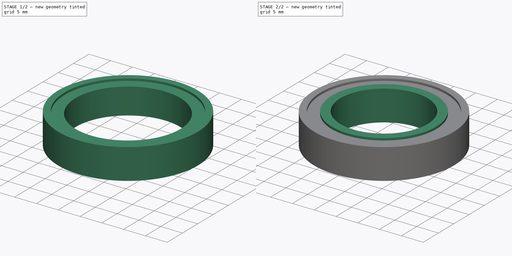
[diagram: build sequence overview — one tinted view per stage of 2, left to right]
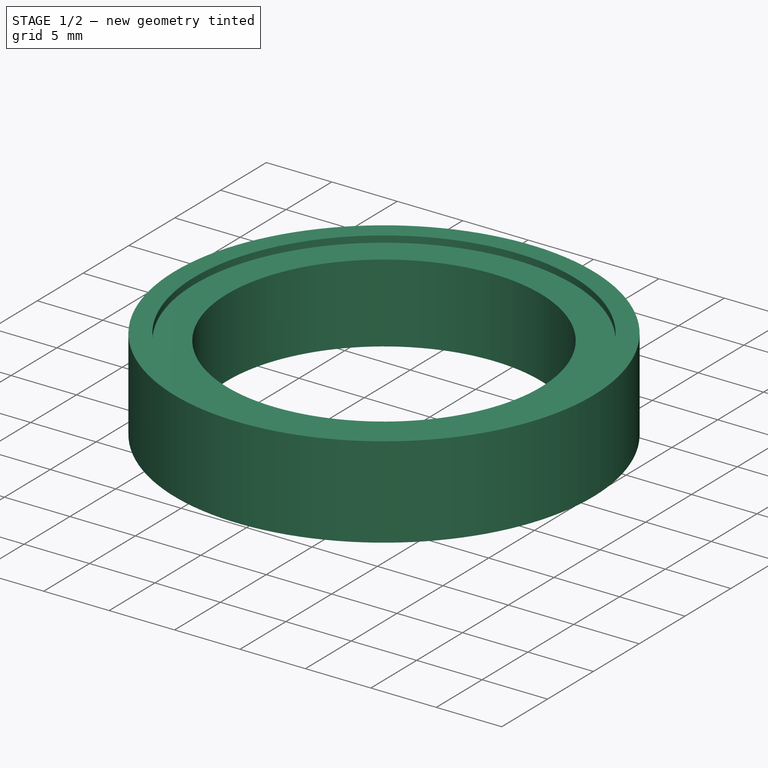
[diagram: stage 1 of 2 — iso view after this stage's code; geometry added in this stage tinted green]
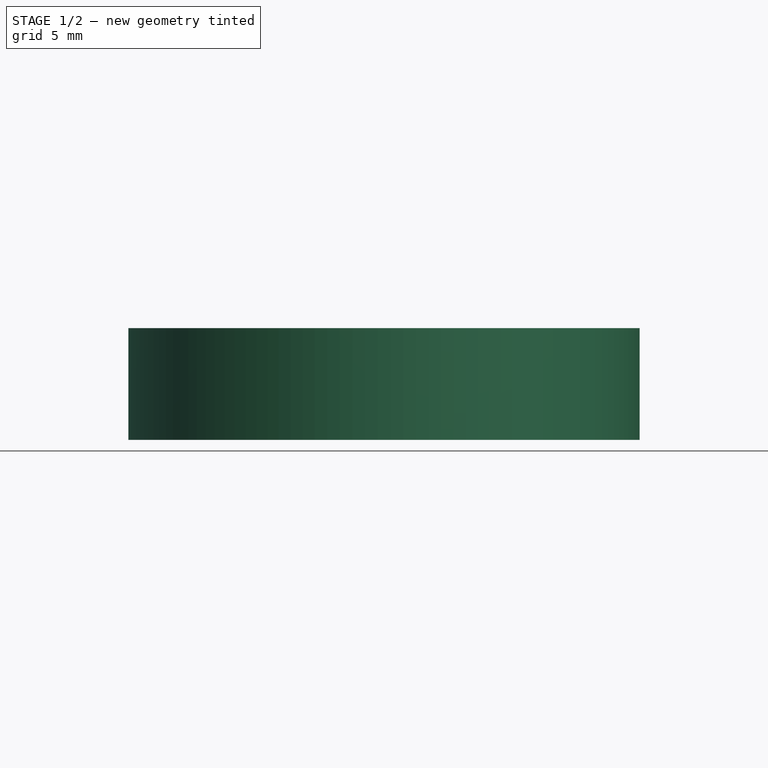
[diagram: stage 1 of 2 — front view after this stage's code; geometry added in this stage tinted green]
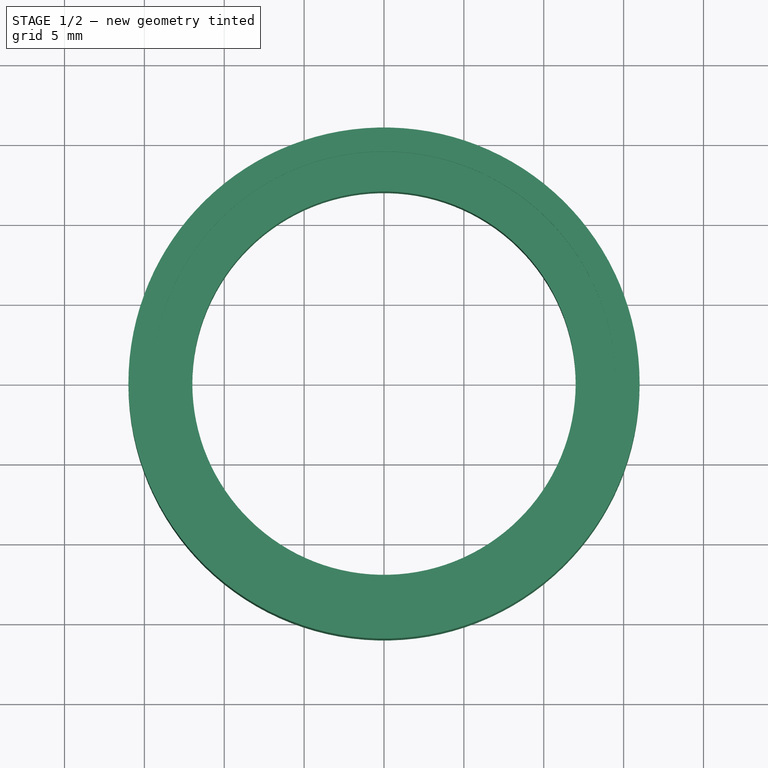
[diagram: stage 1 of 2 — top view after this stage's code; geometry added in this stage tinted green]
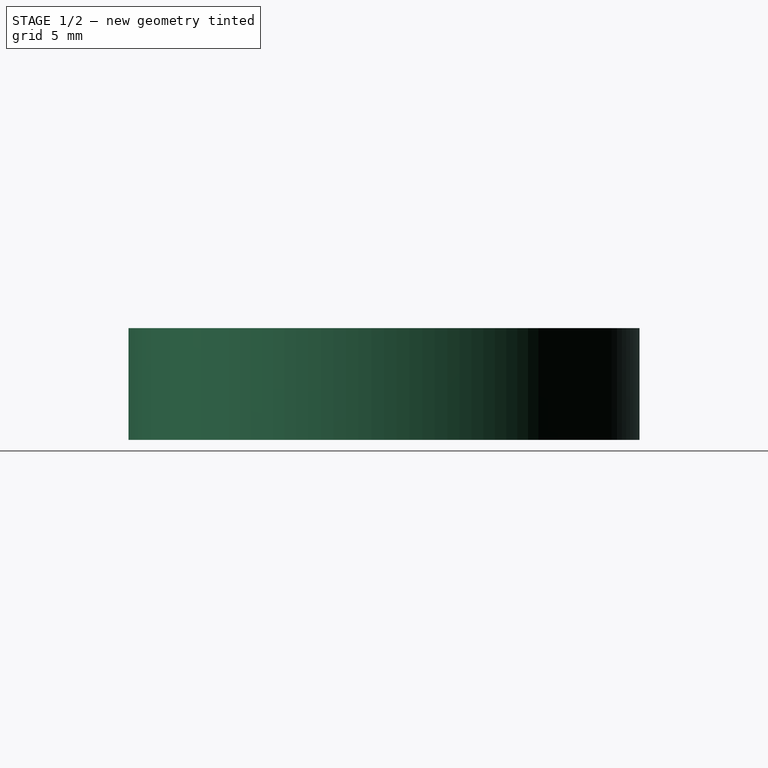
[diagram: stage 1 of 2 — right view after this stage's code; geometry added in this stage tinted green]
FCSTD DOCUMENT  (FreeCAD 2023.1102R14555 (Git shallow))
Label: Ball_Bearing
License: All rights reserved
LicenseURL: http://en.wikipedia.org/wiki/All_rights_reserved
objects: Sketcher::SketchObject×3, PartDesign::Pad×3, PartDesign::Body×1, App::Part×1
note: 16 computed .brp shape members not serialized (recipe doc carries the construction recipe); baked Part::Feature solids carry a one-line shape summary decoded from their .brp

FEATURE [Sketcher::SketchObject] Sketch
  ArcFitTolerance = 0
  AttachmentSupport = -> [XY_Plane]
  ExternalBSplineMaxDegree = 0
  ExternalBSplineTolerance = 0
  FullyConstrained = true
  InternalTolerance = 1e-06
  InvalidShape = false
  MakeInternals = false
  MapMode = 5
  Support = -> [XY_Plane]
  TreeRank = 0
  ValidateShape = false
  sketch-geometry (2):
    g0: Circle CenterX=0 CenterY=0 CenterZ=0 NormalX=0 NormalY=0 NormalZ=1 AngleXU=0 Radius=16
    g1: Circle CenterX=0 CenterY=0 CenterZ=0 NormalX=0 NormalY=0 NormalZ=1 AngleXU=0 Radius=14.5
  constraints (4):
    c: Coincident(g0,g-1)
    c: Diameter(g0) = 32
    c: Coincident(g1,g0)
    c: Diameter(g1) = 29
FEATURE [PartDesign::Pad] Pad
  AddSubType = 0
  AutoTaperInnerAngle = true
  CheckUpToFaceLimits = true
  ClaimChildren = false
  Direction = (0,0,1)
  Fit = 0
  FitJoin = 0
  InnerFit = 0
  InnerFitJoin = 0
  InvalidShape = false
  Length = 7
  Length2 = 10
  Midplane = true
  NewSolid = false
  Profile = -> Sketch
  ReferenceAxis = -> Sketch [N_Axis]
  Suppress = false
  TaperInnerAngle = 0
  TaperInnerAngleRev = 0
  TreeRank = 0
  Type = 0
  ValidateShape = true
  _ProfileBasedVersion = 0
FEATURE [Sketcher::SketchObject] Sketch001
  ArcFitTolerance = 0
  AttachmentSupport = -> [XY_Plane]
  ExternalBSplineMaxDegree = 0
  ExternalBSplineTolerance = 0
  ExternalGeometry = -> [Pad]
  FullyConstrained = true
  InternalTolerance = 1e-06
  InvalidShape = false
  MakeInternals = false
  MapMode = 5
  Support = -> [XY_Plane]
  TreeRank = 0
  ValidateShape = false
  sketch-geometry (2):
    g0: Circle CenterX=0 CenterY=0 CenterZ=0 NormalX=0 NormalY=0 NormalZ=1 AngleXU=0 Radius=14.5
    g1: Circle CenterX=0 CenterY=0 CenterZ=0 NormalX=0 NormalY=0 NormalZ=1 AngleXU=0 Radius=12
  constraints (4):
    c: Equal(g0,g-3)
    c: Coincident(g0,g-3)
    c: Coincident(g1,g0)
    c: Diameter(g1) = 24
FEATURE [PartDesign::Pad] Pad001
  AddSubType = 0
  AutoTaperInnerAngle = true
  BaseFeature = -> Pad
  CheckUpToFaceLimits = true
  ClaimChildren = false
  Direction = (0,0,1)
  Fit = 0
  FitJoin = 0
  InnerFit = 0
  InnerFitJoin = 0
  InvalidShape = false
  Length = 6
  Length2 = 10
  Midplane = true
  NewSolid = false
  Profile = -> Sketch001
  ReferenceAxis = -> Sketch001 [N_Axis]
  Suppress = false
  TaperInnerAngle = 0
  TaperInnerAngleRev = 0
  TreeRank = 0
  Type = 0
  ValidateShape = true
  _ProfileBasedVersion = 0
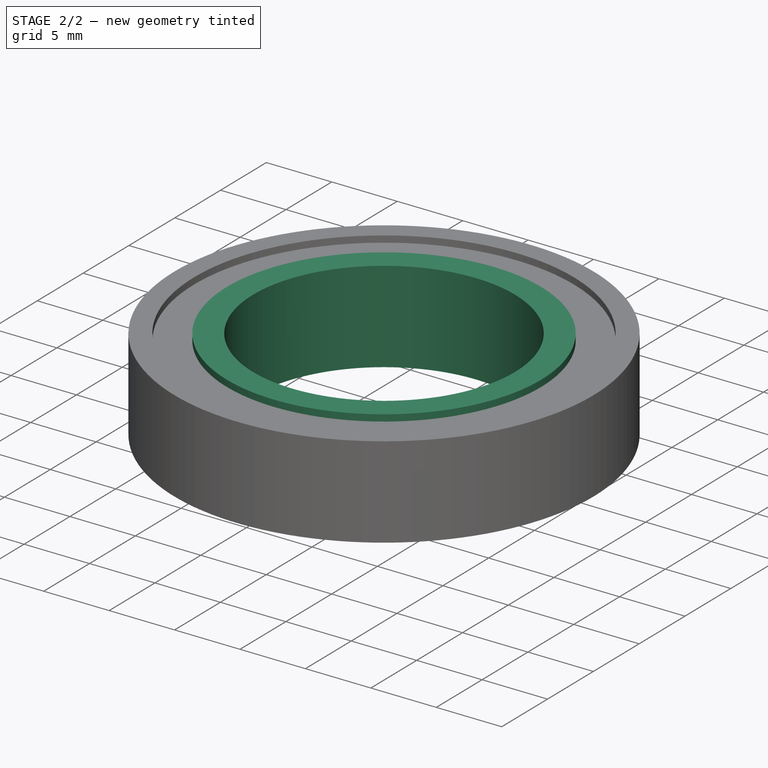
[diagram: stage 2 of 2 — iso view after this stage's code; geometry added in this stage tinted green]
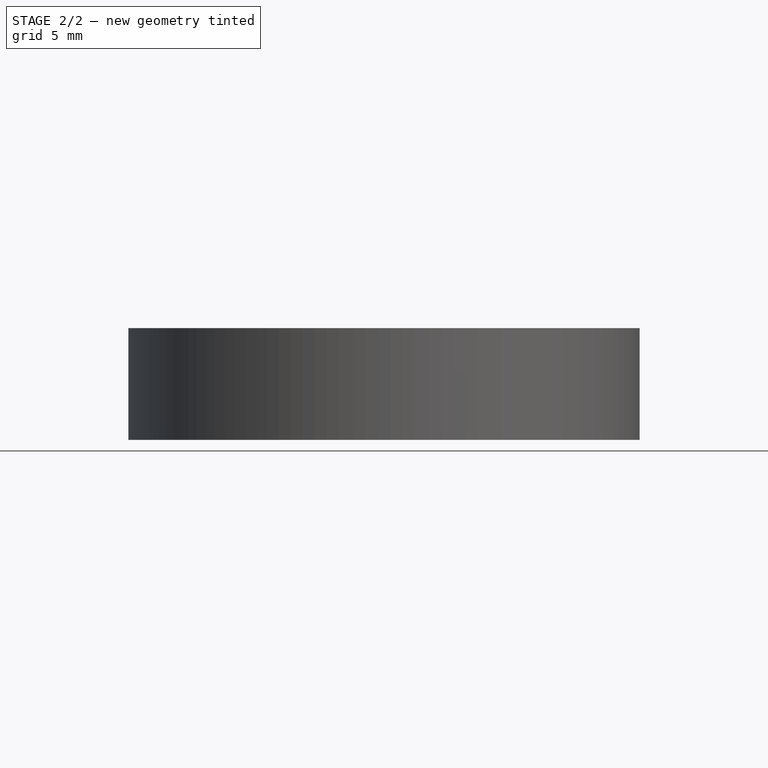
[diagram: stage 2 of 2 — front view after this stage's code; geometry added in this stage tinted green]
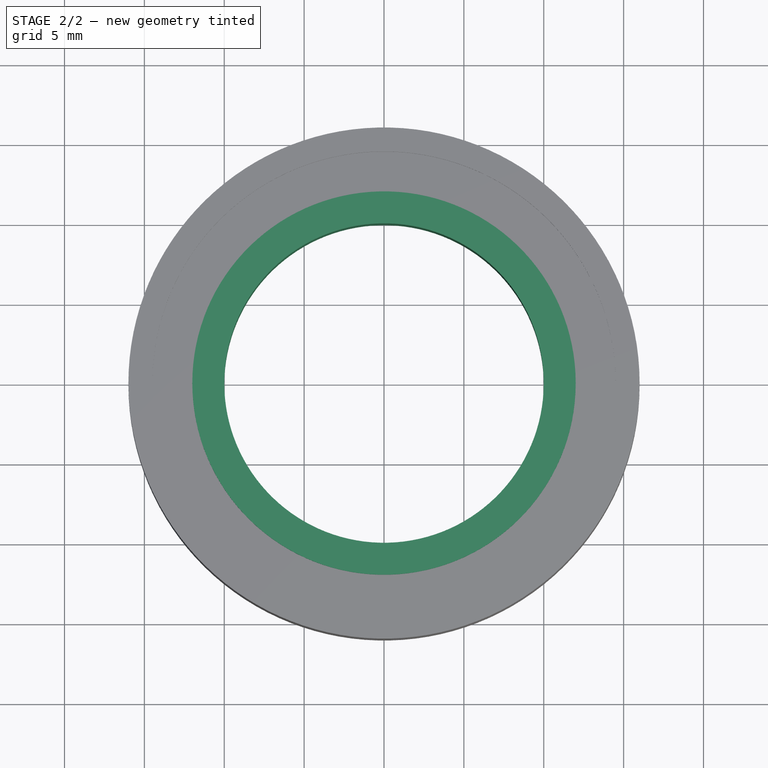
[diagram: stage 2 of 2 — top view after this stage's code; geometry added in this stage tinted green]
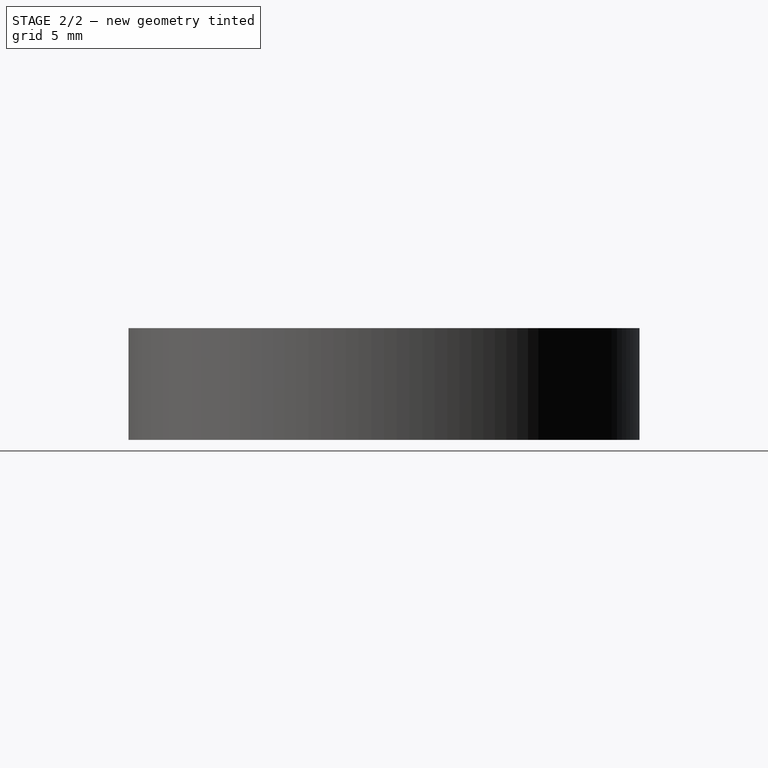
[diagram: stage 2 of 2 — right view after this stage's code; geometry added in this stage tinted green]
FEATURE [Sketcher::SketchObject] Sketch002
  ArcFitTolerance = 0
  AttachmentSupport = -> [XY_Plane]
  ExternalBSplineMaxDegree = 0
  ExternalBSplineTolerance = 0
  ExternalGeometry = -> [Pad001]
  FullyConstrained = true
  InternalTolerance = 1e-06
  InvalidShape = false
  MakeInternals = false
  MapMode = 5
  Support = -> [XY_Plane]
  TreeRank = 0
  ValidateShape = false
  sketch-geometry (2):
    g0: Circle CenterX=0 CenterY=0 CenterZ=0 NormalX=0 NormalY=0 NormalZ=1 AngleXU=0 Radius=12
    g1: Circle CenterX=0 CenterY=0 CenterZ=0 NormalX=0 NormalY=0 NormalZ=1 AngleXU=0 Radius=10
  constraints (4):
    c: Coincident(g0,g-1)
    c: Equal(g0,g-3)
    c: Diameter(g1) = 20
    c: Coincident(g1,g0)
FEATURE [PartDesign::Pad] Pad002
  AddSubType = 0
  AutoTaperInnerAngle = true
  BaseFeature = -> Pad001
  CheckUpToFaceLimits = true
  ClaimChildren = false
  Direction = (0,0,1)
  Fit = 0
  FitJoin = 0
  InnerFit = 0
  InnerFitJoin = 0
  InvalidShape = false
  Length = 7
  Length2 = 10
  Midplane = true
  NewSolid = false
  Profile = -> Sketch002
  ReferenceAxis = -> Sketch002 [N_Axis]
  Suppress = false
  TaperInnerAngle = 0
  TaperInnerAngleRev = 0
  TreeRank = 0
  Type = 0
  ValidateShape = true
  _ProfileBasedVersion = 0
FEATURE [PartDesign::Body] Body
  AutoGroupSolids = false
  ClaimAllChildren = false
  ExportMode = 0
  Group = -> [Sketch,Pad,Sketch001,Pad001,Sketch002,Pad002]
  InvalidShape = false
  Origin = -> Origin
  Tip = -> Pad002
  TreeRank = 0
  ValidateShape = false
  _ExportChildren = -> [Pad,Pad001,Pad002]
  _GroupVersion = 1
FEATURE [App::Part] Part  label="Ball_Bearing"
  ClaimAllChildren = false
  ColoredElements = -> Part [Body.Pad002.Face6,Body.Pad002.Face7]
  ExportMode = 1
  Group = -> [Body]
  Origin = -> Origin001
  TreeRank = 3
  _ExportChildren = -> [Body]
  _GroupVersion = 1
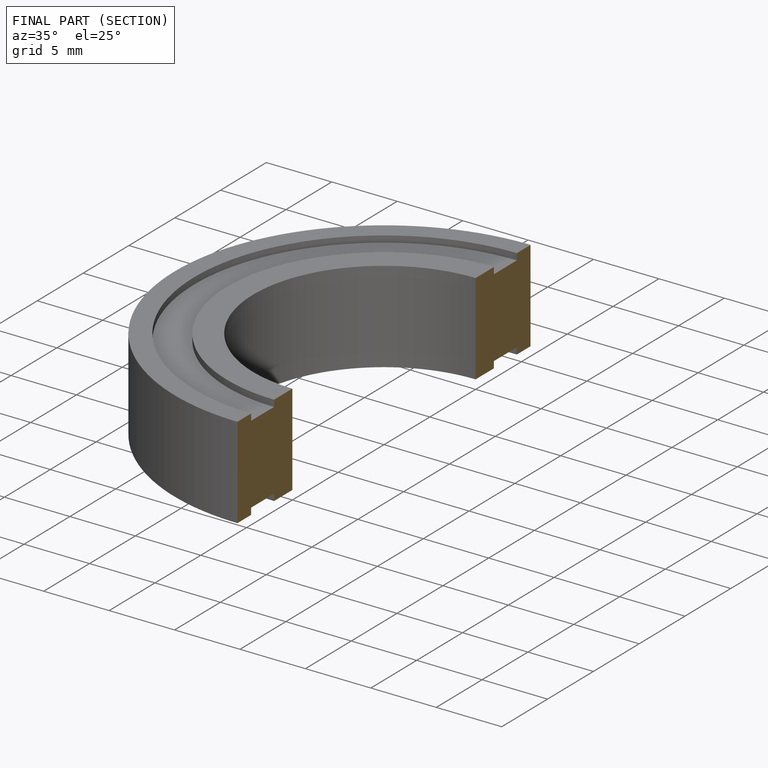
[diagram: finished part — half-section view (interior)]
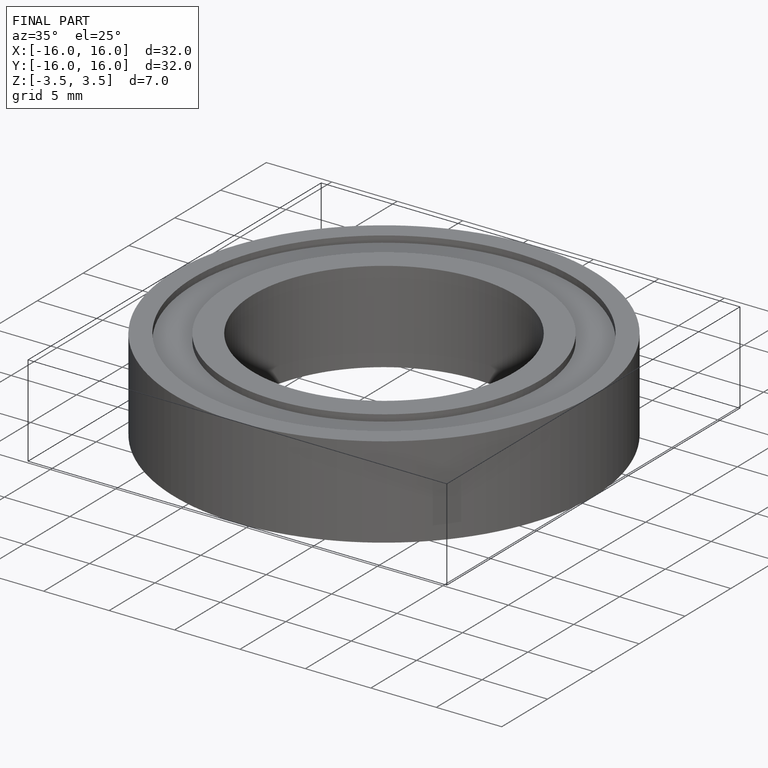
[diagram: finished part — iso view with bounding-box wireframe]
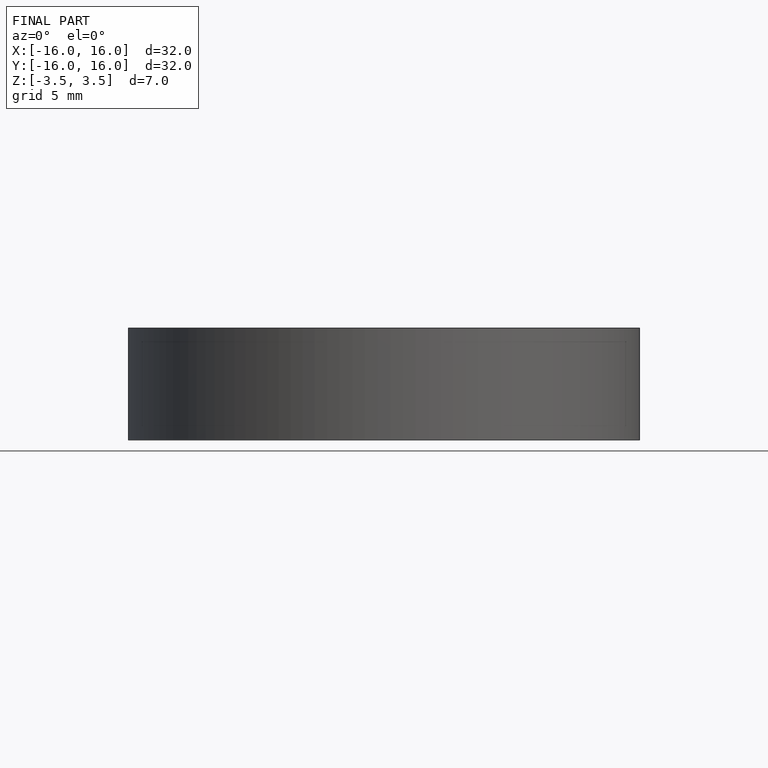
[diagram: finished part — front view with bounding-box wireframe]
